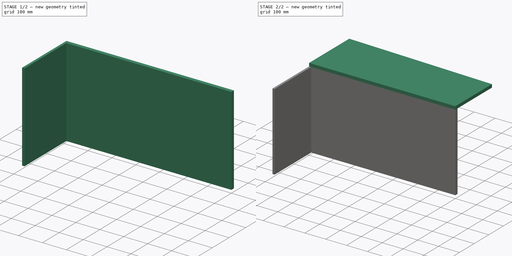
[diagram: build sequence overview — one tinted view per stage of 2, left to right]
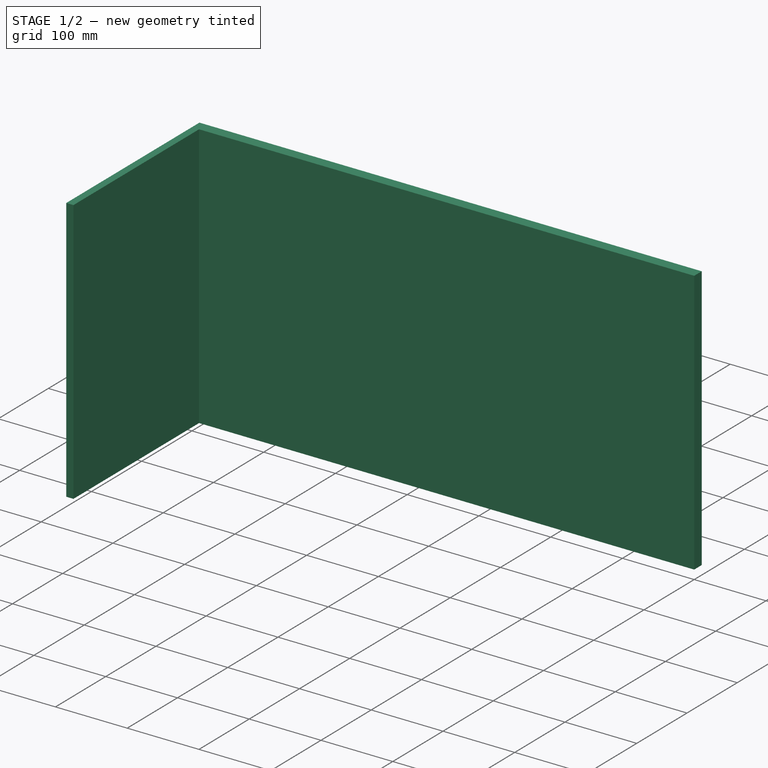
[diagram: stage 1 of 2 — iso view after this stage's code; geometry added in this stage tinted green]
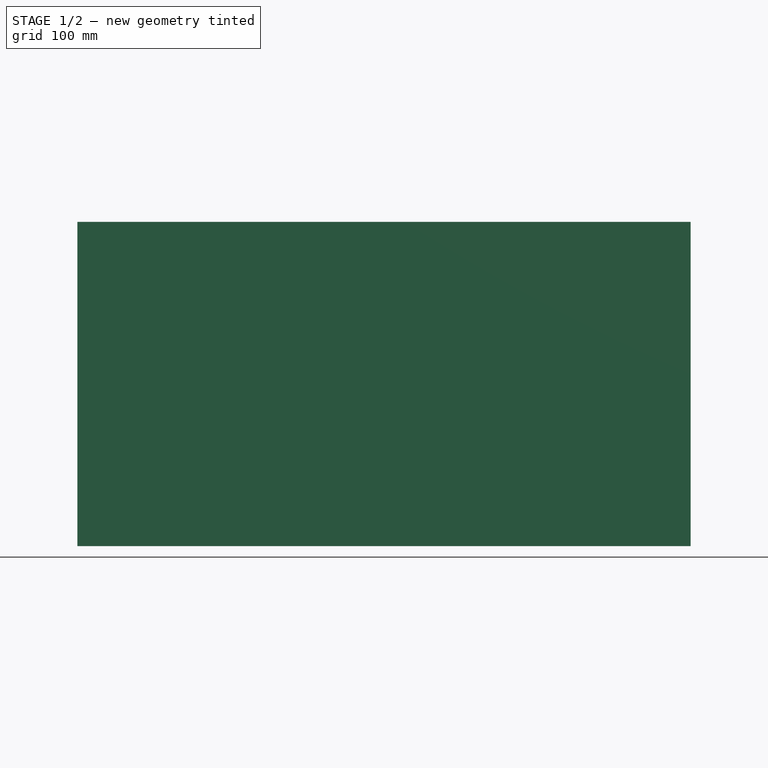
[diagram: stage 1 of 2 — front view after this stage's code; geometry added in this stage tinted green]
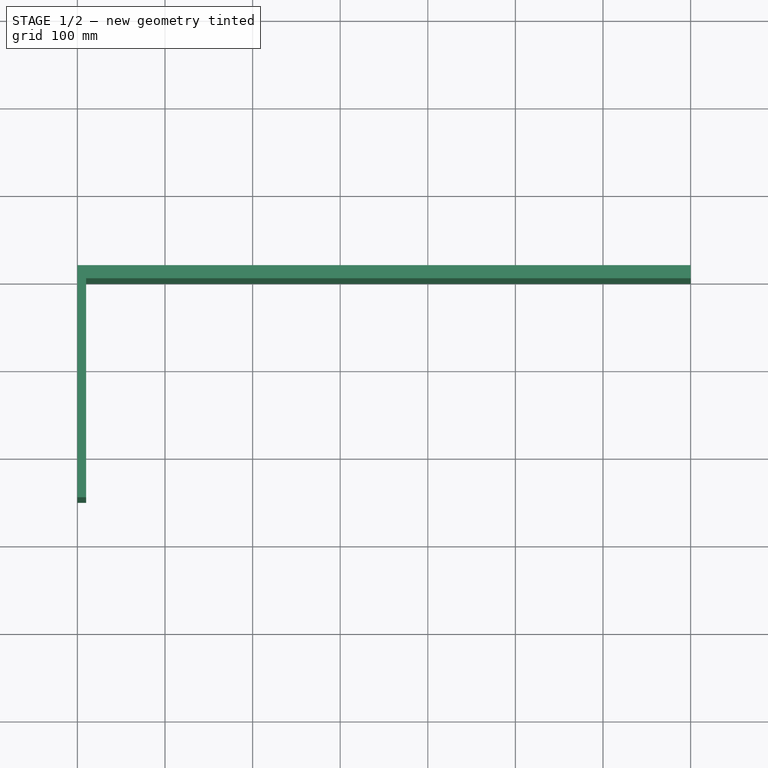
[diagram: stage 1 of 2 — top view after this stage's code; geometry added in this stage tinted green]
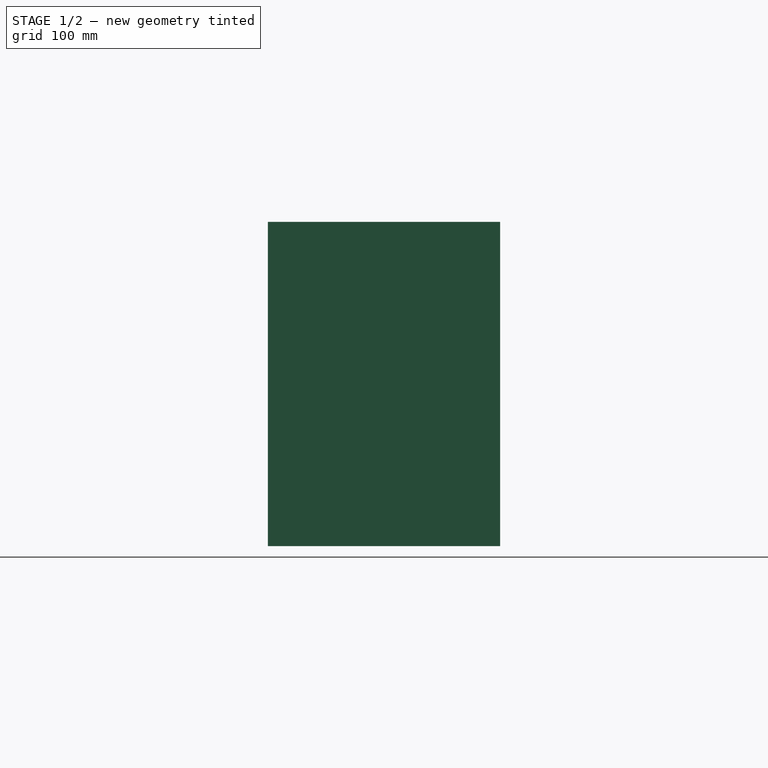
[diagram: stage 1 of 2 — right view after this stage's code; geometry added in this stage tinted green]
FCSTD DOCUMENT  (FreeCAD 0.18R4 (GitTag))
Label: flipper
License: All rights reserved
LicenseURL: http://en.wikipedia.org/wiki/All_rights_reserved
objects: Sketcher::SketchObject×3, PartDesign::Pad×3, PartDesign::Body×3, App::FeaturePython×2, Spreadsheet::Sheet×1, App::DocumentObjectGroup×1
note: 12 computed .brp shape members not serialized (recipe doc carries the construction recipe); baked Part::Feature solids carry a one-line shape summary decoded from their .brp

FEATURE [PartDesign::Body] Body  label="parrois"
  Group = -> [Sketch,Pad]
  Origin = -> Origin
  Tip = -> Pad
FEATURE [App::FeaturePython] Dimension  label="hauteur"  # Draft dimension (typed FeaturePython)
  Diameter = false
  Dimline = (-74,33,0)
  Direction = (0,0,0)
  Distance = 250
  End = (0,0,20)
  Normal = (0,0,1)
  Start = (0,250,20)
FEATURE [App::FeaturePython] Dimension001  label="longueur_caisse"  # Draft dimension (typed FeaturePython)
  Diameter = false
  Dimline = (644.41,-138.263,0)
  Direction = (0,0,0)
  Distance = 699.999
  End = (699.999,0,20)
  Normal = (0,0,1)
  Start = (0,0,20)
FEATURE [App::DocumentObjectGroup] Construction
  Group = -> [Dimension001,Dimension]
FEATURE [Sketcher::SketchObject] Sketch001
  MapMode = 5
  Support = -> [XY_Plane001]
  expr: Constraints[10] = Dimensions_flipp.epaisseur_parois
  expr: Constraints[9] = Dimensions_flipp.longueur_caisse
  sketch-geometry (4):
    g0: LineSegment StartX=0 StartY=0 StartZ=0 EndX=700 EndY=0 EndZ=0
    g1: LineSegment StartX=700 StartY=0 StartZ=0 EndX=700 EndY=15 EndZ=0
    g2: LineSegment StartX=700 StartY=15 StartZ=0 EndX=0 EndY=15 EndZ=0
    g3: LineSegment StartX=0 StartY=15 StartZ=0 EndX=0 EndY=0 EndZ=0
  constraints (11):
    c: Coincident(g0,g1)
    c: Coincident(g1,g2)
    c: Coincident(g2,g3)
    c: Coincident(g3,g0)
    c: Horizontal(g0)
    c: Horizontal(g2)
    c: Vertical(g1)
    c: Vertical(g3)
    c: Coincident(g0,g-1)
    c: DistanceX(g2,g2) = 700
    c: DistanceY(g3,g3) = 15
FEATURE [PartDesign::Pad] Pad001
  Length = 370
  Length2 = 100
  Profile = -> Sketch001
  Reversed = true
  Type = 0
  expr: Length = Dimensions_flipp.largeur_plateau
FEATURE [PartDesign::Body] Body001  label="fond_caisse"
  Group = -> [Sketch001,Pad001]
  Origin = -> Origin001
  Tip = -> Pad001
FEATURE [Sketcher::SketchObject] Sketch002
  MapMode = 5
  Placement = pos=(0,0,0) rot=(1,0,0;1.5708rad)
  Support = -> [XZ_Plane002]
  expr: Constraints[10] = Dimensions_flipp.epaisseur_parois_avant
  expr: Constraints[9] = Dimensions_flipp.largeur_plateau
  sketch-geometry (4):
    g0: LineSegment StartX=0 StartY=0 StartZ=0 EndX=10 EndY=0 EndZ=0
    g1: LineSegment StartX=10 StartY=0 StartZ=0 EndX=10 EndY=-370 EndZ=0
    g2: LineSegment StartX=10 StartY=-370 StartZ=0 EndX=0 EndY=-370 EndZ=0
    g3: LineSegment StartX=0 StartY=-370 StartZ=0 EndX=0 EndY=0 EndZ=0
  constraints (11):
    c: Coincident(g0,g1)
    c: Coincident(g1,g2)
    c: Coincident(g2,g3)
    c: Coincident(g3,g0)
    c: Horizontal(g0)
    c: Horizontal(g2)
    c: Vertical(g1)
    c: Vertical(g3)
    c: Coincident(g0,g-1)
    c: DistanceY(g3,g3) = 370
    c: DistanceX(g2,g2) = 10
FEATURE [PartDesign::Pad] Pad002
  Length = 250
  Length2 = 100
  Placement = pos=(0,0,0) rot=(1,0,0;1.5708rad)
  Profile = -> Sketch002
  Type = 0
  expr: Length = Dimensions_flipp.hauteur_parois
FEATURE [PartDesign::Body] Body002  label="parois_avant"
  Group = -> [Sketch002,Pad002]
  Origin = -> Origin002
  Tip = -> Pad002
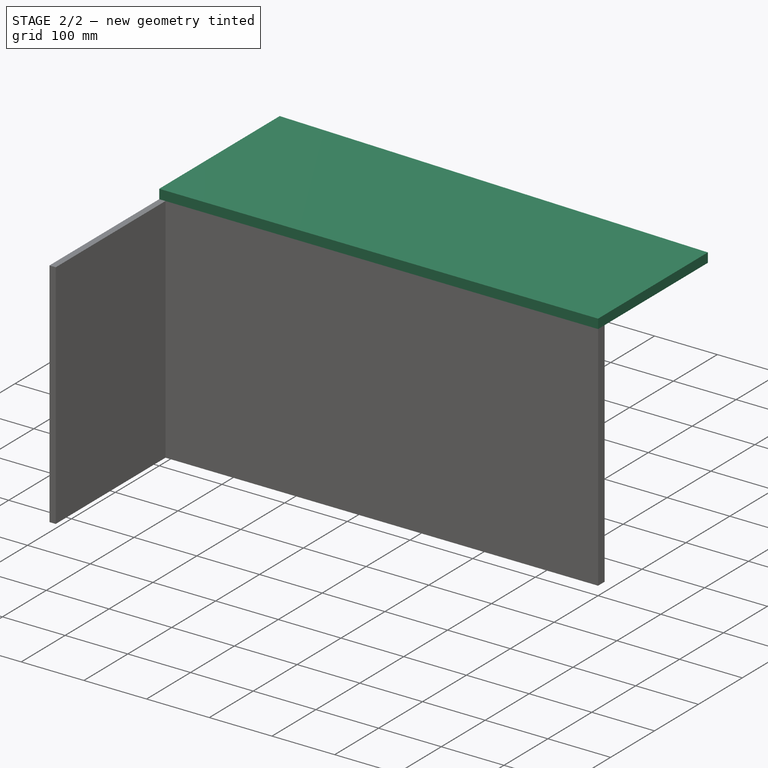
[diagram: stage 2 of 2 — iso view after this stage's code; geometry added in this stage tinted green]
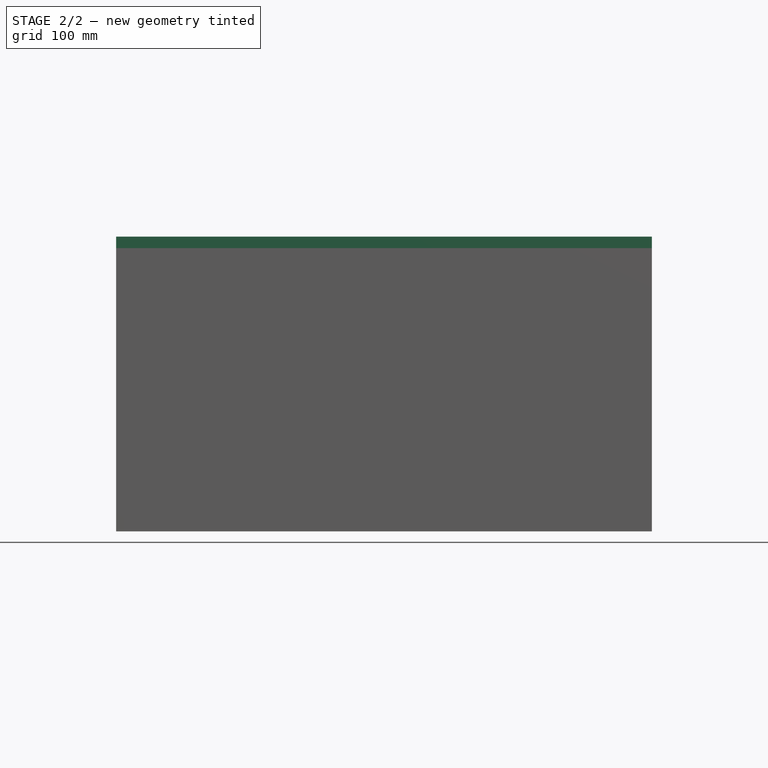
[diagram: stage 2 of 2 — front view after this stage's code; geometry added in this stage tinted green]
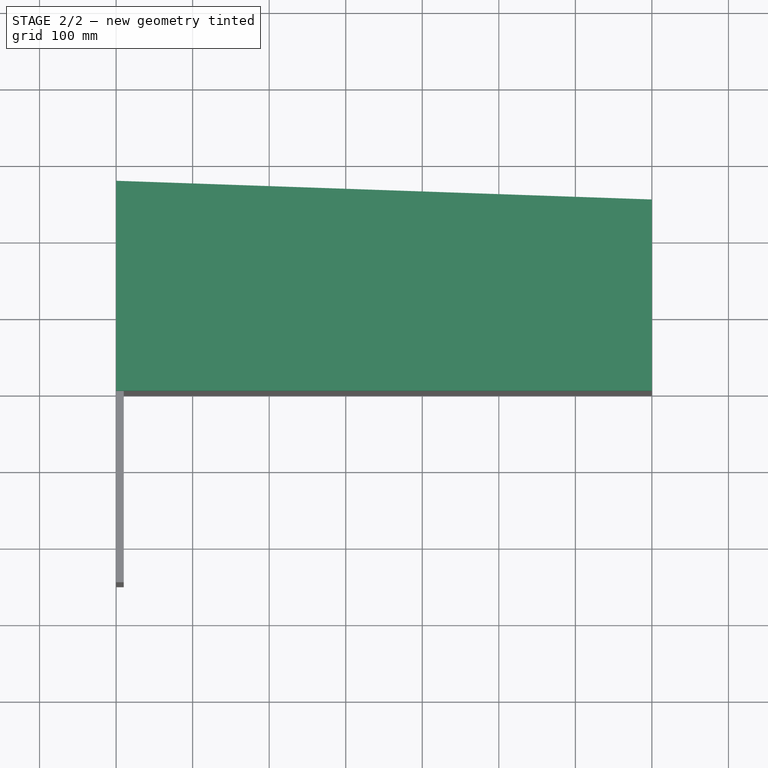
[diagram: stage 2 of 2 — top view after this stage's code; geometry added in this stage tinted green]
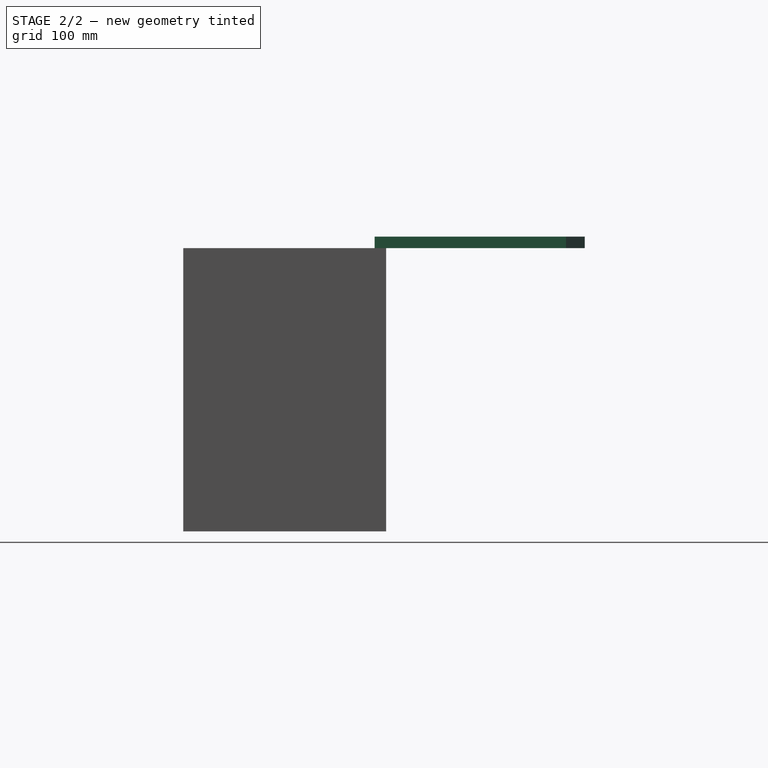
[diagram: stage 2 of 2 — right view after this stage's code; geometry added in this stage tinted green]
FEATURE [Sketcher::SketchObject] Sketch  label="Côté Flipp"
  MapMode = 5
  Support = -> [XY_Plane]
  expr: Constraints[14] = Dimensions_flipp.angle_vitre
  expr: Constraints[10] = Dimensions_flipp.hauteur_parois
  expr: Constraints[8] = Dimensions_flipp.longueur_caisse
  sketch-geometry (6):
    g0: LineSegment StartX=0 StartY=0 StartZ=0 EndX=700 EndY=0 EndZ=0
    g1: LineSegment StartX=700 StartY=0 StartZ=0 EndX=700 EndY=250 EndZ=0
    g2: LineSegment [constr] StartX=700 StartY=250 StartZ=0 EndX=0 EndY=250 EndZ=0
    g3: LineSegment StartX=0 StartY=250 StartZ=0 EndX=0 EndY=0 EndZ=0
    g4: LineSegment StartX=0 StartY=250 StartZ=0 EndX=0 EndY=274.445 EndZ=0
    g5: LineSegment StartX=0 StartY=274.445 StartZ=0 EndX=700 EndY=250 EndZ=0
  constraints (15):
    c: Coincident(g0,g1)
    c: Coincident(g1,g2)
    c: Coincident(g2,g3)
    c: Coincident(g3,g0)
    c: Horizontal(g0)
    c: Horizontal(g2)
    c: Vertical(g1)
    c: Vertical(g3)
    c: DistanceX(g0,g0) = 700
    c: Coincident(g0,g-1)
    c: DistanceY(g3,g3) = 250
    c: PointOnObject(g4,g-2)
    c: Coincident(g5,g4)
    c: Coincident(g5,g1)
    c: Angle(g5,g2) = 0.0349066
FEATURE [Spreadsheet::Sheet] Spreadsheet  label="Dimensions_flipp"
  cells = A1=Longueur caisse (mm); B1=Angle (°) vitre; C1=Epaisseur Parois (mm); D1=Epaisseur parois avant; A2(longueur_caisse)==700mm; B2(angle_vitre)==2°; C2(epaisseur_parois)==15mm; D2(epaisseur_parois_avant)==10mm; A4=Hauteur Parois; A5(hauteur_parois)==250mm; A10=Largeur plateau (mm); A11(largeur_plateau)==400mm - 2 * C2
FEATURE [PartDesign::Pad] Pad
  Length = 15
  Length2 = 100
  Profile = -> Sketch
  Type = 0
  expr: Length = Dimensions_flipp.epaisseur_parois
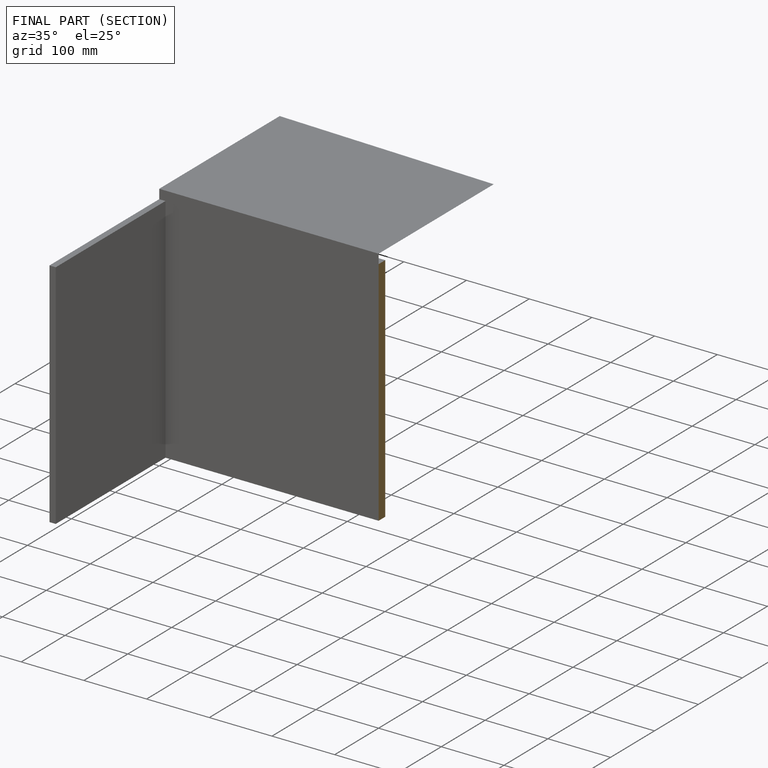
[diagram: finished part — half-section view (interior)]
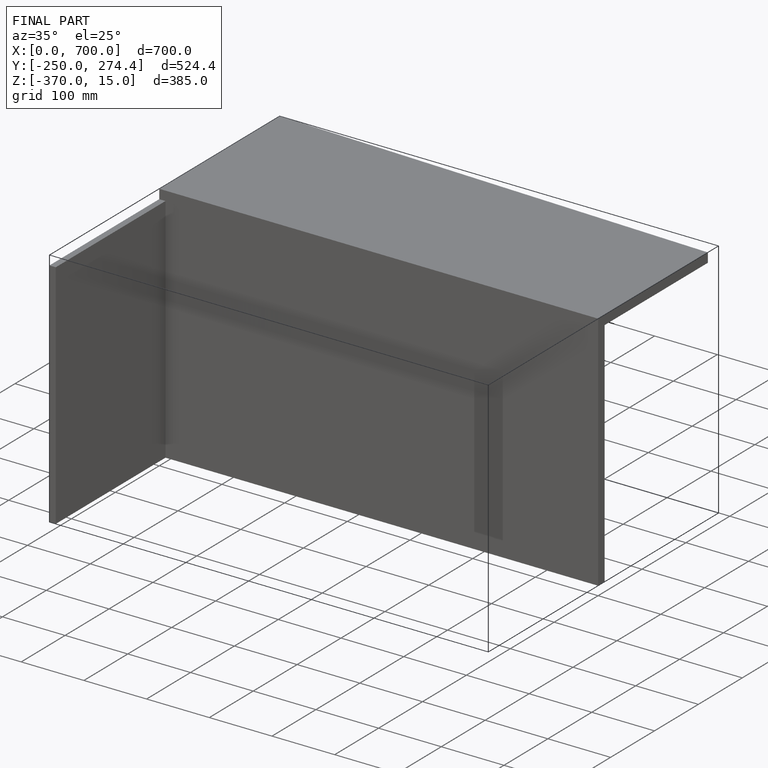
[diagram: finished part — iso view with bounding-box wireframe]
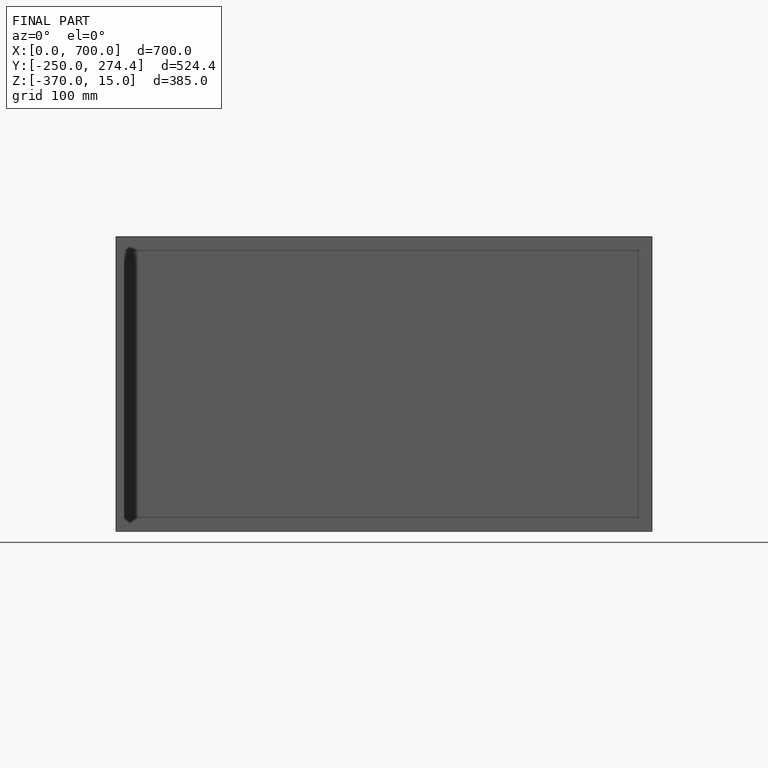
[diagram: finished part — front view with bounding-box wireframe]
